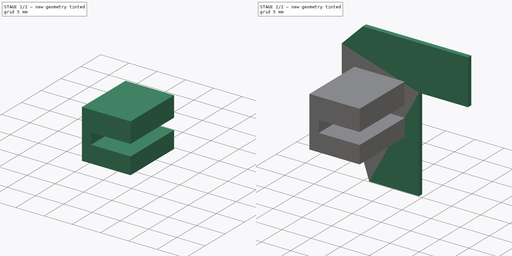
[diagram: build sequence overview — one tinted view per stage of 2, left to right]
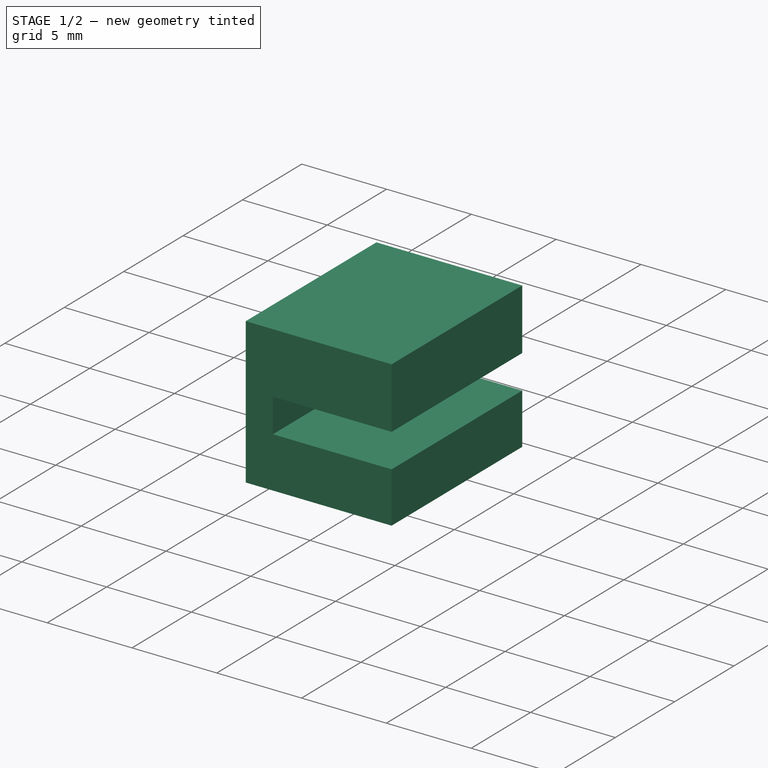
[diagram: stage 1 of 2 — iso view after this stage's code; geometry added in this stage tinted green]
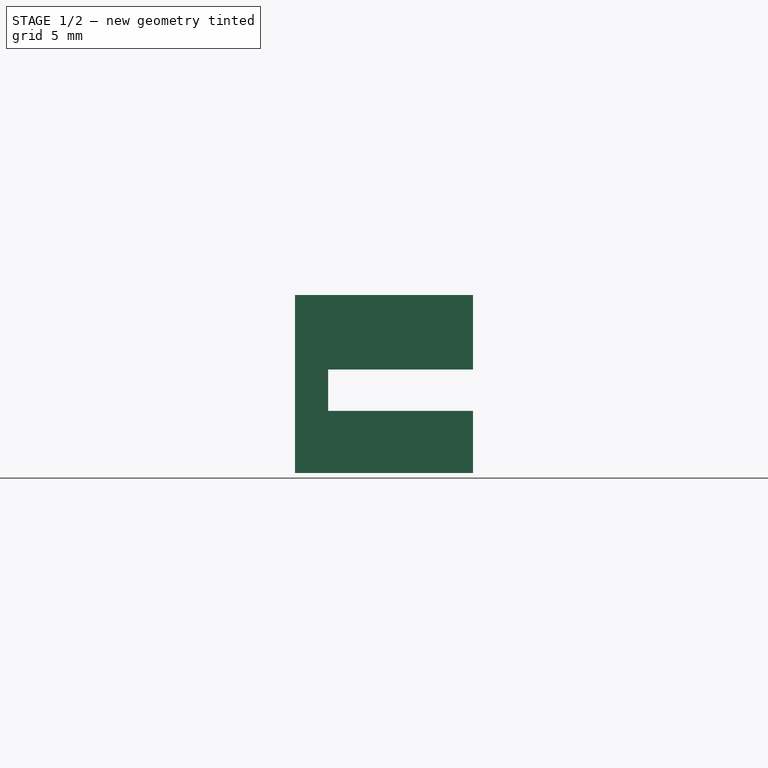
[diagram: stage 1 of 2 — front view after this stage's code; geometry added in this stage tinted green]
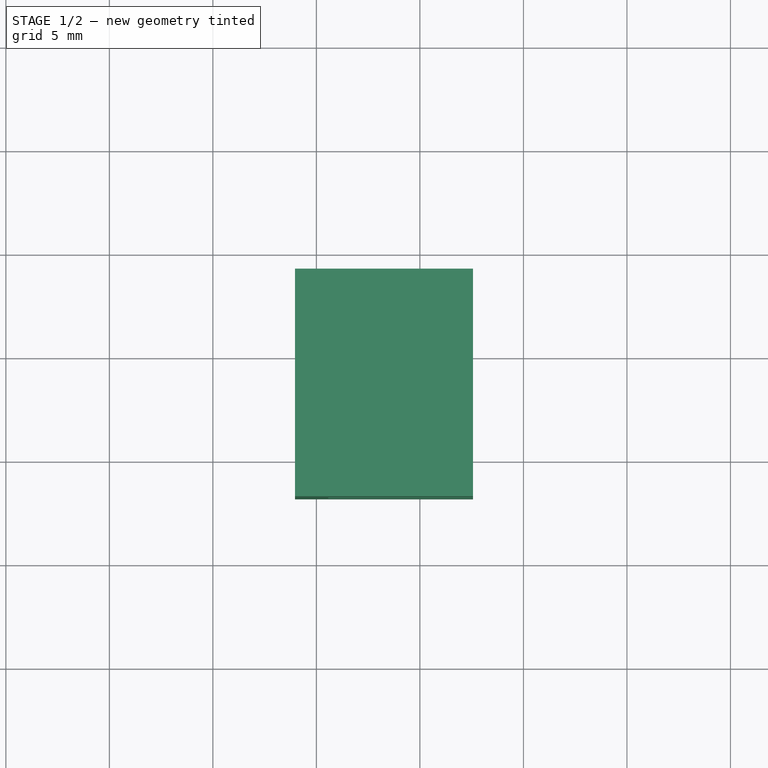
[diagram: stage 1 of 2 — top view after this stage's code; geometry added in this stage tinted green]
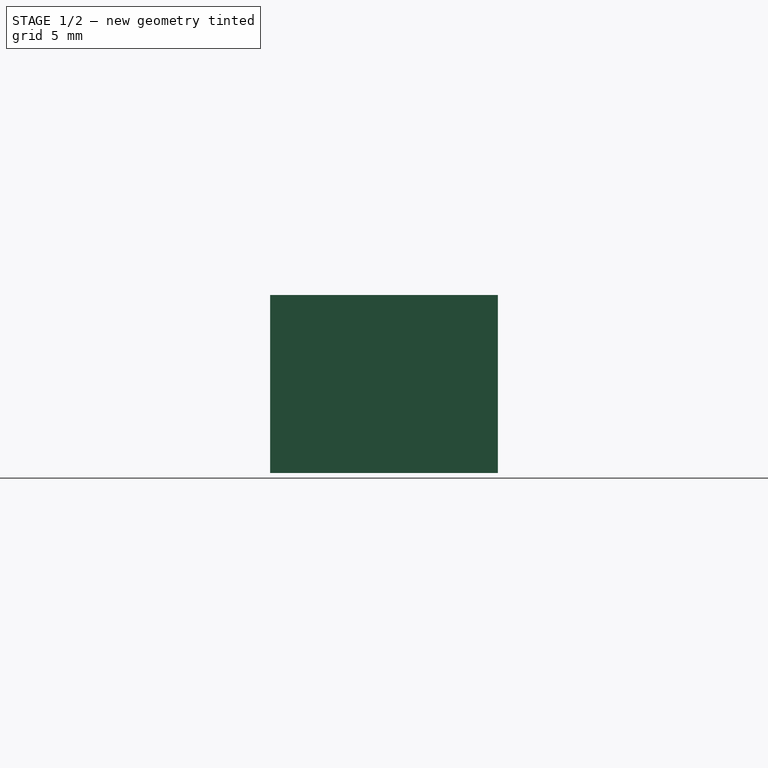
[diagram: stage 1 of 2 — right view after this stage's code; geometry added in this stage tinted green]
FCSTD DOCUMENT  (FreeCAD 0.15R4671 (Git))
Label: EncoderCircuit
License: CreativeCommons Attribution-NonCommercial
LicenseURL: http://creativecommons.org/licenses/by-nc/4.0/
objects: Sketcher::SketchObject×2, PartDesign::Pad×2
note: 6 computed .brp shape members not serialized (recipe doc carries the construction recipe); baked Part::Feature solids carry a one-line shape summary decoded from their .brp

FEATURE [PartDesign::Pad] Pad001  label="IRSensor"
  Length = 11
  Length2 = 100
  Placement = pos=(2,-0.8,-3) rot=(1,0,0;1.5708rad)
  Sketch = -> Sketch001
  Type = 0
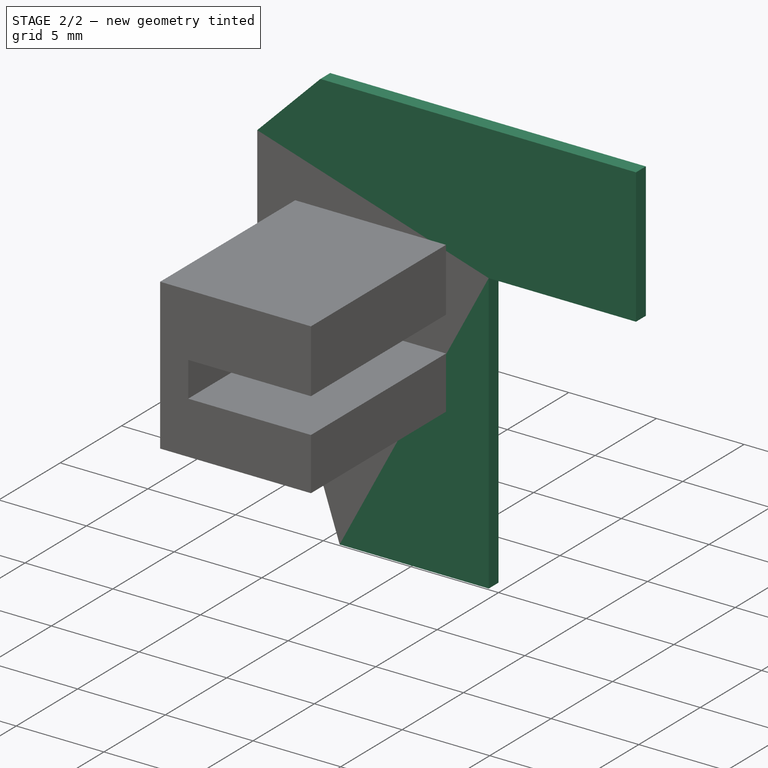
[diagram: stage 2 of 2 — iso view after this stage's code; geometry added in this stage tinted green]
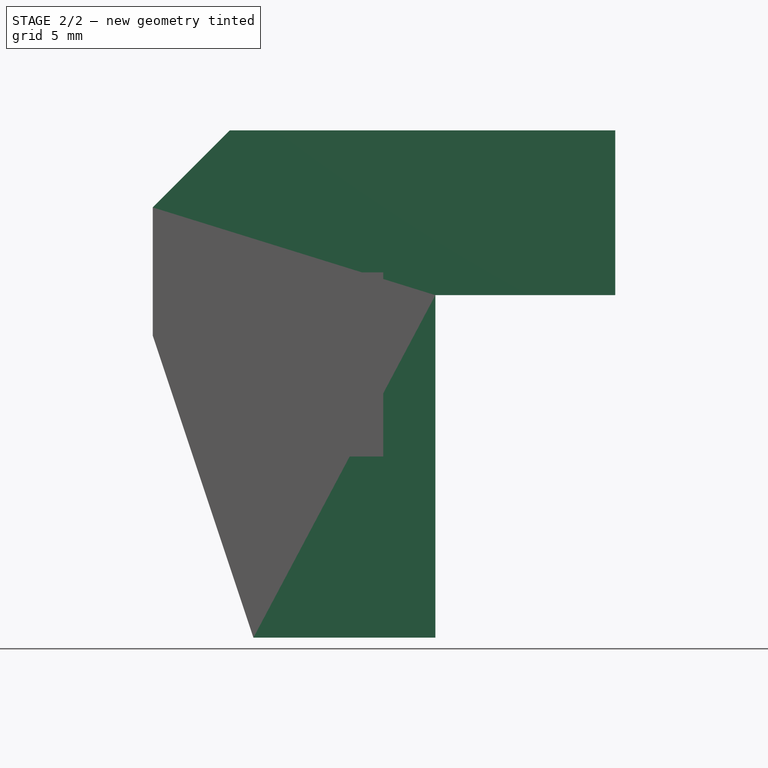
[diagram: stage 2 of 2 — front view after this stage's code; geometry added in this stage tinted green]
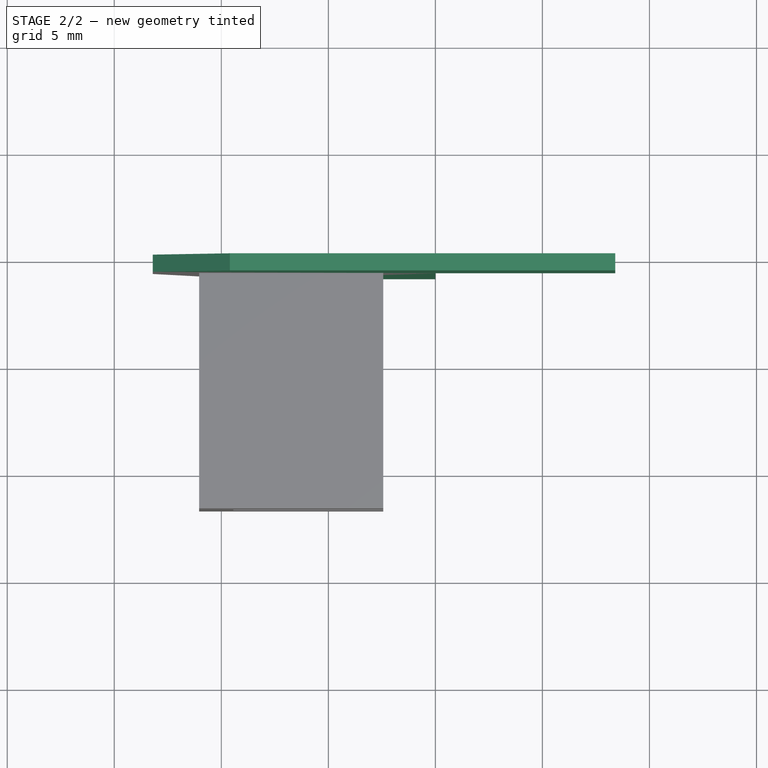
[diagram: stage 2 of 2 — top view after this stage's code; geometry added in this stage tinted green]
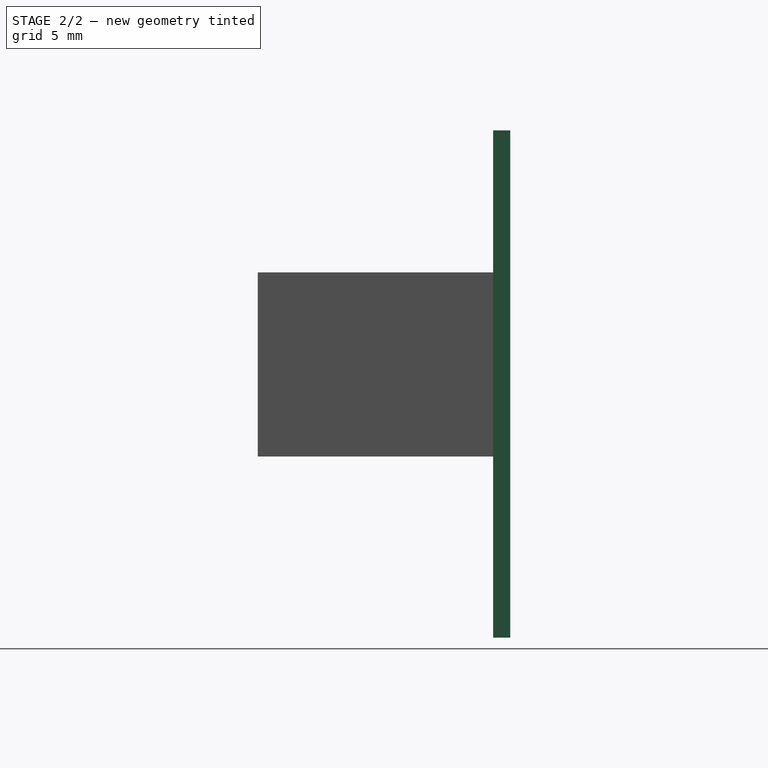
[diagram: stage 2 of 2 — right view after this stage's code; geometry added in this stage tinted green]
FEATURE [Sketcher::SketchObject] Sketch
  Placement = pos=(0,0,0) rot=(1,0,0;1.5708rad)
  sketch-geometry (9):
    g0: LineSegment StartX=-1.7118e-08 StartY=-4.29825e-07 StartZ=0 EndX=-1.7118e-08 EndY=16 EndZ=0
    g1: LineSegment StartX=-1.7118e-08 StartY=16 StartZ=0 EndX=8.4 EndY=16 EndZ=0
    g2: LineSegment StartX=8.4 StartY=16 StartZ=0 EndX=8.4 EndY=23.7 EndZ=0
    g3: LineSegment StartX=8.4 StartY=23.7 StartZ=0 EndX=-9.6 EndY=23.7 EndZ=0
    g4: LineSegment StartX=-9.6 StartY=23.7 StartZ=0 EndX=-13.2 EndY=20.1 EndZ=0
    g5: LineSegment StartX=-13.2 StartY=20.1 StartZ=0 EndX=-13.2 EndY=14.1 EndZ=0
    g6: LineSegment StartX=-13.2 StartY=14.1 StartZ=0 EndX=-8.5 EndY=0 EndZ=0
    g7: LineSegment StartX=-8.5 StartY=0 StartZ=0 EndX=0 EndY=0 EndZ=0
    g8: LineSegment StartX=0 StartY=0 StartZ=0 EndX=-1.7118e-08 EndY=-4.29825e-07 EndZ=0
  constraints (24):
    c: Coincident(g0,g1)
    c: Coincident(g1,g2)
    c: Coincident(g2,g3)
    c: Coincident(g3,g4)
    c: Coincident(g4,g5)
    c: Coincident(g5,g6)
    c: Coincident(g6,g7)
    c: Coincident(g7,g-1)
    c: Coincident(g7,g8)
    c: Coincident(g8,g-1)
    c: Horizontal(g7)
    c: Horizontal(g3)
    c: Vertical(g2)
    c: Horizontal(g1)
    c: Vertical(g0)
    c: DistanceY(g0) = 16
    c: DistanceY(g2) = 7.7
    c: DistanceX(g1) = 8.4
    c: DistanceX(g3) = -18
    c: Vertical(g5)
    c: DistanceX(g7) = 8.5
    c: Coincident(g0,g8)
    c: DistanceY(g5) = -6
    c: Angle(g4) = -2.35619
FEATURE [Sketcher::SketchObject] Sketch001
  Placement = pos=(2,-0.8,-3) rot=(1,0,0;1.5708rad)
  sketch-geometry (8):
    g0: LineSegment StartX=-13.0345 StartY=20.0658 StartZ=0 EndX=-4.43446 EndY=20.0658 EndZ=0
    g1: LineSegment StartX=-4.43446 StartY=20.0658 StartZ=0 EndX=-4.43446 EndY=16.4658 EndZ=0
    g2: LineSegment StartX=-4.43446 StartY=16.4658 StartZ=0 EndX=-11.4345 EndY=16.4658 EndZ=0
    g3: LineSegment StartX=-11.4345 StartY=16.4658 StartZ=0 EndX=-11.4345 EndY=14.4658 EndZ=0
    g4: LineSegment StartX=-11.4345 StartY=14.4658 StartZ=0 EndX=-4.43446 EndY=14.4658 EndZ=0
    g5: LineSegment StartX=-4.43446 StartY=14.4658 StartZ=0 EndX=-4.43446 EndY=11.4658 EndZ=0
    g6: LineSegment StartX=-4.43446 StartY=11.4658 StartZ=0 EndX=-13.0345 EndY=11.4658 EndZ=0
    g7: LineSegment StartX=-13.0345 StartY=11.4658 StartZ=0 EndX=-13.0345 EndY=20.0658 EndZ=0
  constraints (23):
    c: Coincident(g0,g1)
    c: Coincident(g1,g2)
    c: Coincident(g2,g3)
    c: Coincident(g3,g4)
    c: Coincident(g4,g5)
    c: Coincident(g5,g6)
    c: Coincident(g6,g7)
    c: Coincident(g0,g7)
    c: Horizontal(g0)
    c: Vertical(g7)
    c: Vertical(g1)
    c: Vertical(g5)
    c: Horizontal(g6)
    c: Vertical(g3)
    c: Horizontal(g4)
    c: Horizontal(g2)
    c: DistanceY(g7) = 8.6
    c: DistanceX(g6) = -8.6
    c: Equal(g0,g6)
    c: DistanceY(g3) = -2
    c: DistanceX(g2) = -7
    c: Equal(g2,g4)
    c: DistanceY(g1) = -3.6
FEATURE [PartDesign::Pad] Pad  label="Circuit"
  Length = 0.8
  Length2 = 100
  Placement = pos=(0,0,0) rot=(1,0,0;1.5708rad)
  Sketch = -> Sketch
  Type = 0
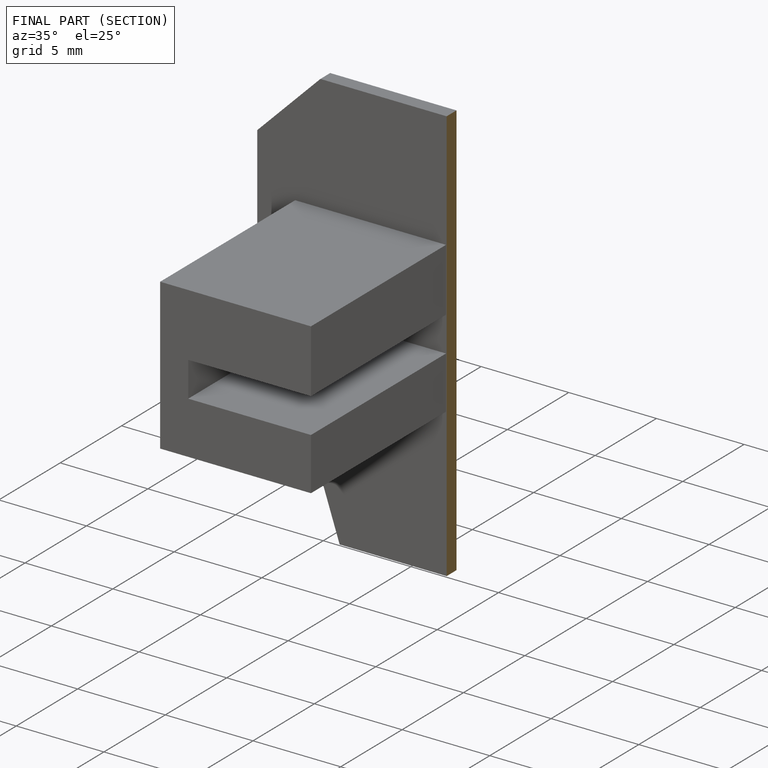
[diagram: finished part — half-section view (interior)]
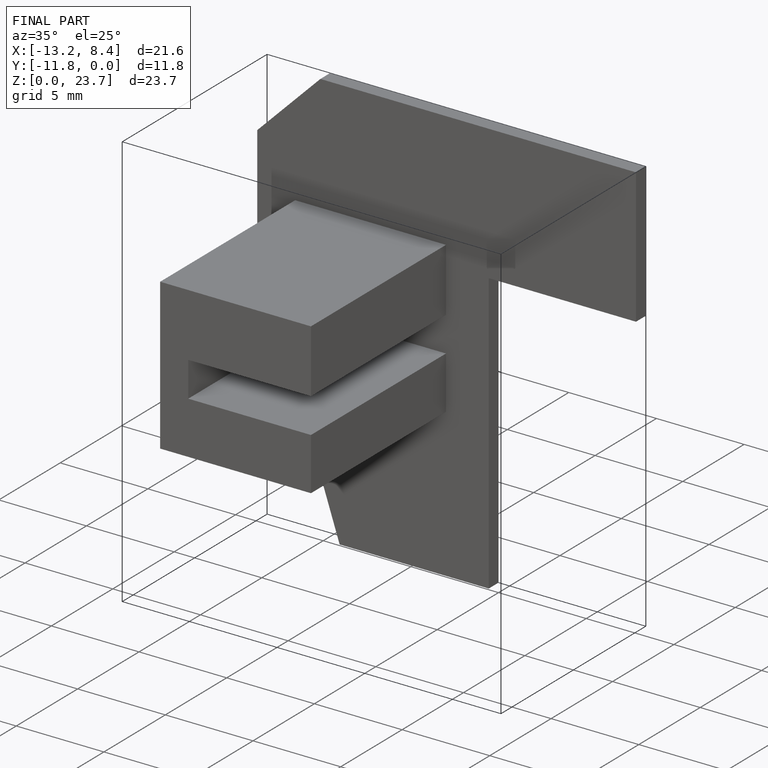
[diagram: finished part — iso view with bounding-box wireframe]
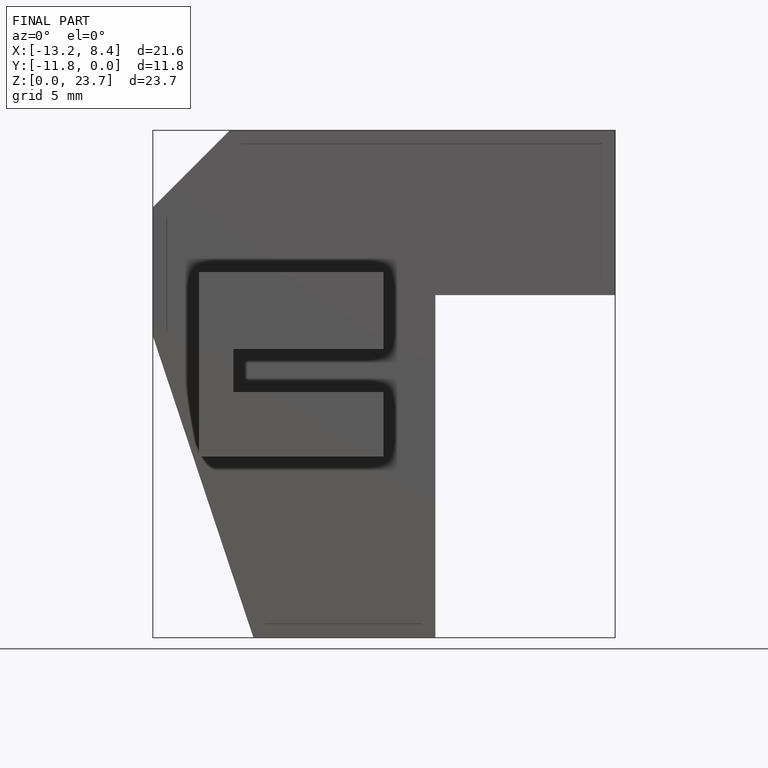
[diagram: finished part — front view with bounding-box wireframe]
